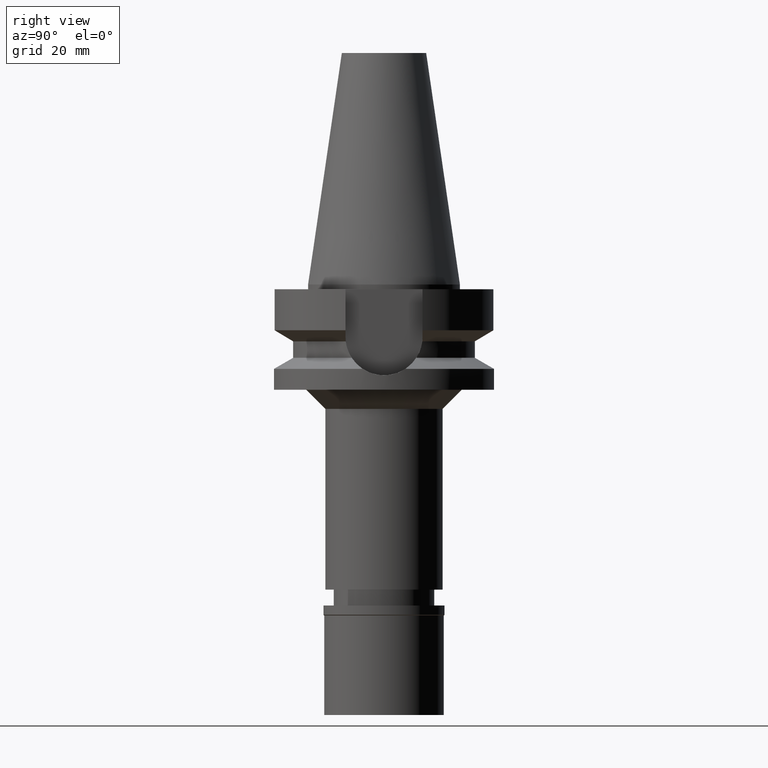
[diagram: clean part render]
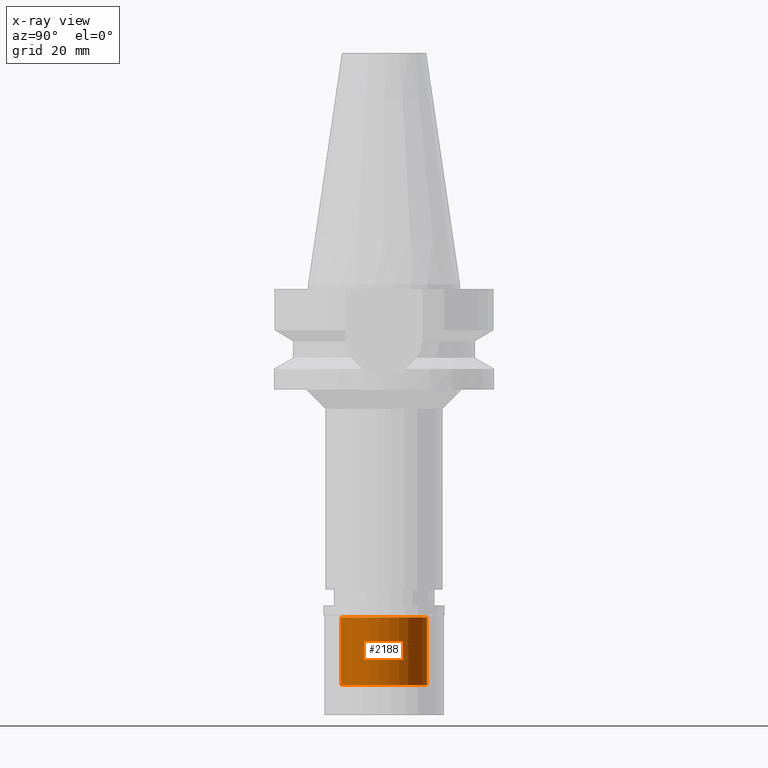
[diagram: x-ray — body ghosted, one internal face saturated and labeled with its STEP entity id]
A machine part, right view, then the same camera in x-ray: the body is ghosted and one INTERNAL B-rep face — a face not visible from any outside direction — is saturated and labeled: STEP entity #2188.
In plain terms, the highlighted cylindrical surface (partial cylindrical patch) has radius 9 mm, axis along (0, 0, -1).
Its self-contained STEP definition (entity closure, byte-faithful):
#185 = CARTESIAN_POINT ( 'NONE',  ( 0.0000000000000000000, 0.0000000000000000000, -16.69999999999999929 ) ) ;
#229 = CARTESIAN_POINT ( 'NONE',  ( 0.0000000000000000000, 0.0000000000000000000, 0.0000000000000000000 ) ) ;
#331 = FACE_OUTER_BOUND ( 'NONE', #596, .T. ) ;
#406 = CARTESIAN_POINT ( 'NONE',  ( 0.0000000000000000000, 9.000000000000000000, -16.69999999999999929 ) ) ;
#596 = EDGE_LOOP ( 'NONE', ( #2777, #2128, #3071, #2500 ) ) ;
#717 = VERTEX_POINT ( 'NONE', #2081 ) ;
#753 = VERTEX_POINT ( 'NONE', #1617 ) ;
#829 = CARTESIAN_POINT ( 'NONE',  ( 0.0000000000000000000, 9.000000000000000000, -16.69999999999999929 ) ) ;
#851 = CARTESIAN_POINT ( 'NONE',  ( 0.0000000000000000000, 0.0000000000000000000, -2.500000000000000000 ) ) ;
#898 = DIRECTION ( 'NONE',  ( 0.0000000000000000000, 0.0000000000000000000, -1.000000000000000000 ) ) ;
#943 = DIRECTION ( 'NONE',  ( 0.0000000000000000000, 0.0000000000000000000, -1.000000000000000000 ) ) ;
#1033 = EDGE_CURVE ( 'NONE', #2376, #717, #1296, .T. ) ;
#1076 = CARTESIAN_POINT ( 'NONE',  ( 0.0000000000000000000, -9.000000000000000000, -2.500000000000000000 ) ) ;
#1191 = EDGE_CURVE ( 'NONE', #753, #2232, #1835, .T. ) ;
#1207 = AXIS2_PLACEMENT_3D ( 'NONE', #185, #898, #2300 ) ;
#1255 = DIRECTION ( 'NONE',  ( 0.0000000000000000000, 0.0000000000000000000, 1.000000000000000000 ) ) ;
#1296 = LINE ( 'NONE', #829, #2757 ) ;
#1383 = VECTOR ( 'NONE', #2546, 1000.000000000000000 ) ;
#1555 = CIRCLE ( 'NONE', #1988, 9.000000000000000000 ) ;
#1613 = CARTESIAN_POINT ( 'NONE',  ( 0.0000000000000000000, -9.000000000000000000, -16.69999999999999929 ) ) ;
#1617 = CARTESIAN_POINT ( 'NONE',  ( 0.0000000000000000000, -9.000000000000000000, -16.69999999999999929 ) ) ;
#1835 = LINE ( 'NONE', #1613, #1383 ) ;
#1974 = DIRECTION ( 'NONE',  ( 0.0000000000000000000, -1.000000000000000000, 0.0000000000000000000 ) ) ;
#1988 = AXIS2_PLACEMENT_3D ( 'NONE', #851, #2715, #1974 ) ;
#2081 = CARTESIAN_POINT ( 'NONE',  ( 0.0000000000000000000, 9.000000000000000000, -2.500000000000000000 ) ) ;
#2118 = CYLINDRICAL_SURFACE ( 'NONE', #2583, 9.000000000000000000 ) ;
#2128 = ORIENTED_EDGE ( 'NONE', *, *, #1191, .T. ) ;
#2188 = ADVANCED_FACE ( 'NONE', ( #331 ), #2118, .F. ) ;
#2232 = VERTEX_POINT ( 'NONE', #1076 ) ;
#2300 = DIRECTION ( 'NONE',  ( 0.0000000000000000000, 1.000000000000000000, 0.0000000000000000000 ) ) ;
#2376 = VERTEX_POINT ( 'NONE', #406 ) ;
#2500 = ORIENTED_EDGE ( 'NONE', *, *, #1033, .F. ) ;
#2546 = DIRECTION ( 'NONE',  ( 0.0000000000000000000, 0.0000000000000000000, 1.000000000000000000 ) ) ;
#2583 = AXIS2_PLACEMENT_3D ( 'NONE', #229, #943, #2835 ) ;
#2695 = CIRCLE ( 'NONE', #1207, 9.000000000000000000 ) ;
#2715 = DIRECTION ( 'NONE',  ( 0.0000000000000000000, 0.0000000000000000000, 1.000000000000000000 ) ) ;
#2757 = VECTOR ( 'NONE', #1255, 1000.000000000000000 ) ;
#2777 = ORIENTED_EDGE ( 'NONE', *, *, #2970, .T. ) ;
#2824 = EDGE_CURVE ( 'NONE', #2232, #717, #1555, .T. ) ;
#2835 = DIRECTION ( 'NONE',  ( 0.0000000000000000000, -1.000000000000000000, 0.0000000000000000000 ) ) ;
#2970 = EDGE_CURVE ( 'NONE', #2376, #753, #2695, .T. ) ;
#3071 = ORIENTED_EDGE ( 'NONE', *, *, #2824, .T. ) ;